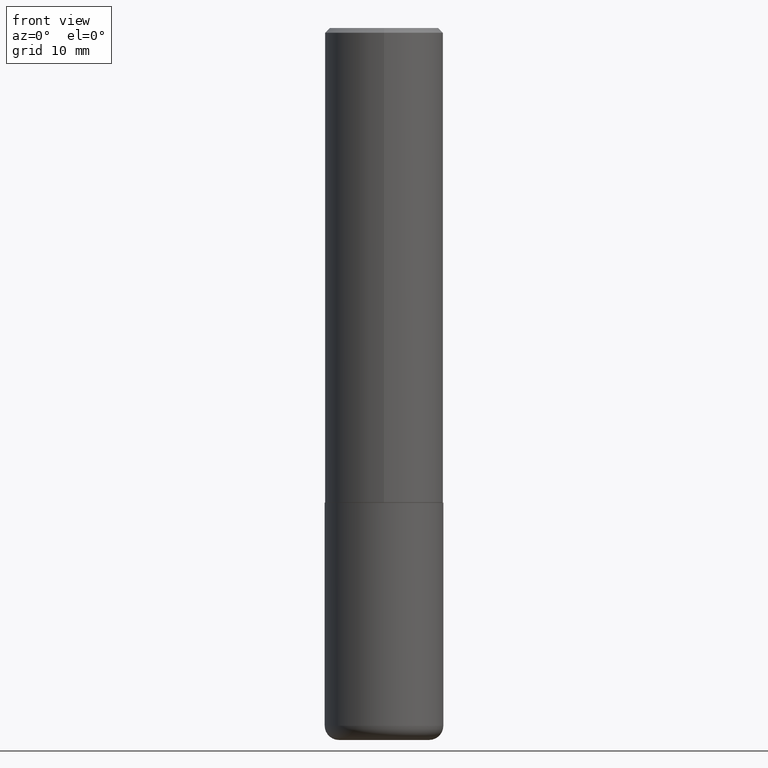
[diagram: clean part render]
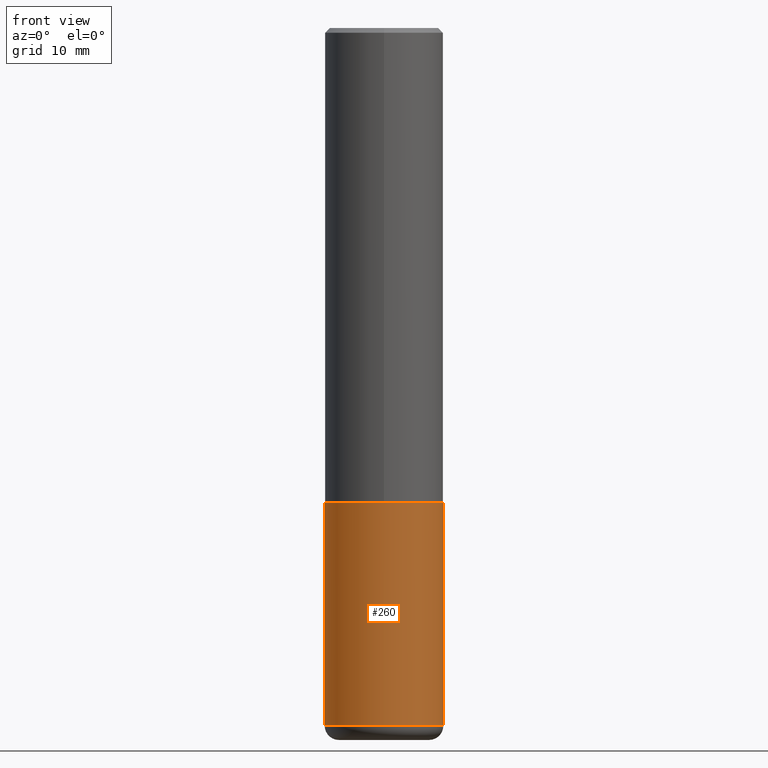
[diagram: same view with one face highlighted and labeled with its STEP entity id]
A machine part, front view. The second image highlights one B-rep face of the part: STEP entity #260.
In plain terms, the highlighted cylindrical surface (partial cylindrical patch) has radius 6.35 mm, axis along (-0, 0, 1).
Its self-contained STEP definition (entity closure, byte-faithful):
#5 = EDGE_LOOP ( 'NONE', ( #51, #56, #334, #87 ) ) ;
#6 = EDGE_CURVE ( 'NONE', #146, #144, #252, .T. ) ;
#31 = CARTESIAN_POINT ( 'NONE',  ( 0.2500000000000000000, -1.745740669421566678E-15, 1.219044193948983948E-29 ) ) ;
#35 = CYLINDRICAL_SURFACE ( 'NONE', #128, 0.2500000000000000000 ) ;
#37 = EDGE_CURVE ( 'NONE', #132, #204, #188, .T. ) ;
#51 = ORIENTED_EDGE ( 'NONE', *, *, #37, .F. ) ;
#56 = ORIENTED_EDGE ( 'NONE', *, *, #73, .T. ) ;
#68 = CIRCLE ( 'NONE', #325, 0.2500000000000000000 ) ;
#73 = EDGE_CURVE ( 'NONE', #132, #146, #163, .T. ) ;
#87 = ORIENTED_EDGE ( 'NONE', *, *, #103, .F. ) ;
#99 = CARTESIAN_POINT ( 'NONE',  ( 7.189678290184301639E-29, -1.026495513619884961E-14, -2.940000000000000391 ) ) ;
#100 = DIRECTION ( 'NONE',  ( -2.445468806185136597E-29, 3.491481338843145583E-15, 1.000000000000000000 ) ) ;
#101 = VECTOR ( 'NONE', #322, 39.37007874015748143 ) ;
#103 = EDGE_CURVE ( 'NONE', #204, #144, #68, .T. ) ;
#128 = AXIS2_PLACEMENT_3D ( 'NONE', #387, #251, #159 ) ;
#132 = VERTEX_POINT ( 'NONE', #241 ) ;
#134 = DIRECTION ( 'NONE',  ( 1.000000000000000000, -6.982962677686262766E-15, 0.000000000000000000 ) ) ;
#144 = VERTEX_POINT ( 'NONE', #237 ) ;
#146 = VERTEX_POINT ( 'NONE', #232 ) ;
#159 = DIRECTION ( 'NONE',  ( 1.000000000000000000, -6.982962677686266711E-15, 4.876176775795935793E-29 ) ) ;
#163 = CIRCLE ( 'NONE', #347, 0.2500000000000000000 ) ;
#188 = LINE ( 'NONE', #291, #101 ) ;
#204 = VERTEX_POINT ( 'NONE', #335 ) ;
#221 = DIRECTION ( 'NONE',  ( -2.445468806185136877E-29, 3.491481338843145188E-15, 1.000000000000000000 ) ) ;
#232 = CARTESIAN_POINT ( 'NONE',  ( 0.2499999999999998335, -1.201069580562041471E-14, -2.940000000000000391 ) ) ;
#237 = CARTESIAN_POINT ( 'NONE',  ( 0.2500000000000000000, -8.728703347107858632E-15, -2.000000000000000444 ) ) ;
#241 = CARTESIAN_POINT ( 'NONE',  ( -0.2499999999999998335, -8.488598296798600727E-15, -2.940000000000000391 ) ) ;
#251 = DIRECTION ( 'NONE',  ( -2.445468806185136597E-29, 3.491481338843145583E-15, 1.000000000000000000 ) ) ;
#252 = LINE ( 'NONE', #31, #278 ) ;
#260 = ADVANCED_FACE ( 'NONE', ( #324 ), #35, .T. ) ;
#274 = CARTESIAN_POINT ( 'NONE',  ( 4.890937612370273754E-29, -6.982962677686291954E-15, -2.000000000000000444 ) ) ;
#278 = VECTOR ( 'NONE', #221, 39.37007874015748143 ) ;
#291 = CARTESIAN_POINT ( 'NONE',  ( -0.2500000000000000000, 1.776356839400250465E-15, -1.229733772563726445E-29 ) ) ;
#301 = DIRECTION ( 'NONE',  ( -2.445468806185136597E-29, 3.491481338843145583E-15, 1.000000000000000000 ) ) ;
#322 = DIRECTION ( 'NONE',  ( -2.445468806185136877E-29, 3.491481338843145188E-15, 1.000000000000000000 ) ) ;
#324 = FACE_OUTER_BOUND ( 'NONE', #5, .T. ) ;
#325 = AXIS2_PLACEMENT_3D ( 'NONE', #274, #301, #363 ) ;
#334 = ORIENTED_EDGE ( 'NONE', *, *, #6, .T. ) ;
#335 = CARTESIAN_POINT ( 'NONE',  ( -0.2500000000000000000, -6.847602067542319531E-15, -2.000000000000000444 ) ) ;
#347 = AXIS2_PLACEMENT_3D ( 'NONE', #99, #100, #134 ) ;
#363 = DIRECTION ( 'NONE',  ( 1.000000000000000000, -6.982962677686266711E-15, 0.000000000000000000 ) ) ;
#387 = CARTESIAN_POINT ( 'NONE',  ( 0.000000000000000000, 0.000000000000000000, 0.000000000000000000 ) ) ;